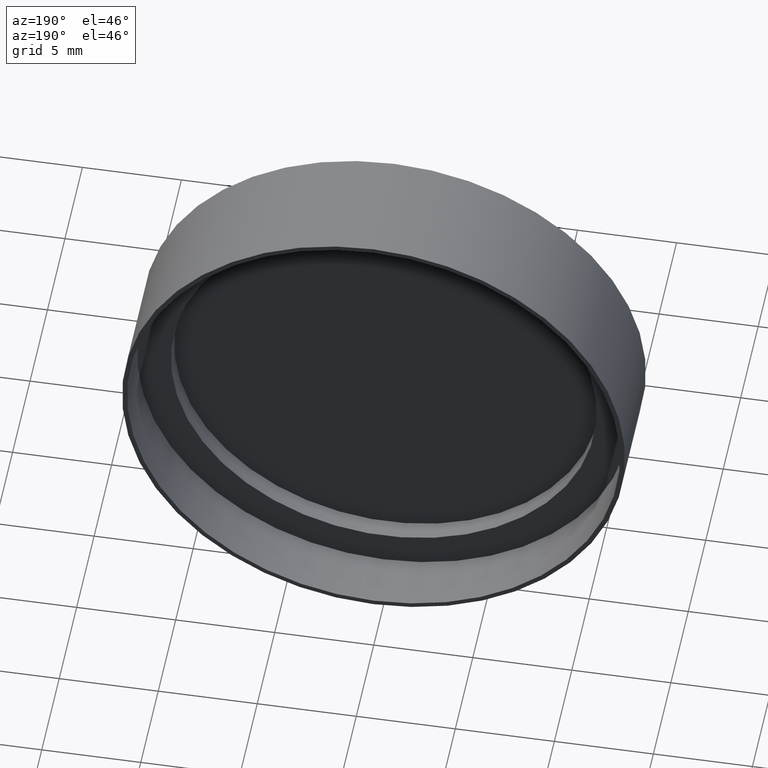
[diagram: clean part render]
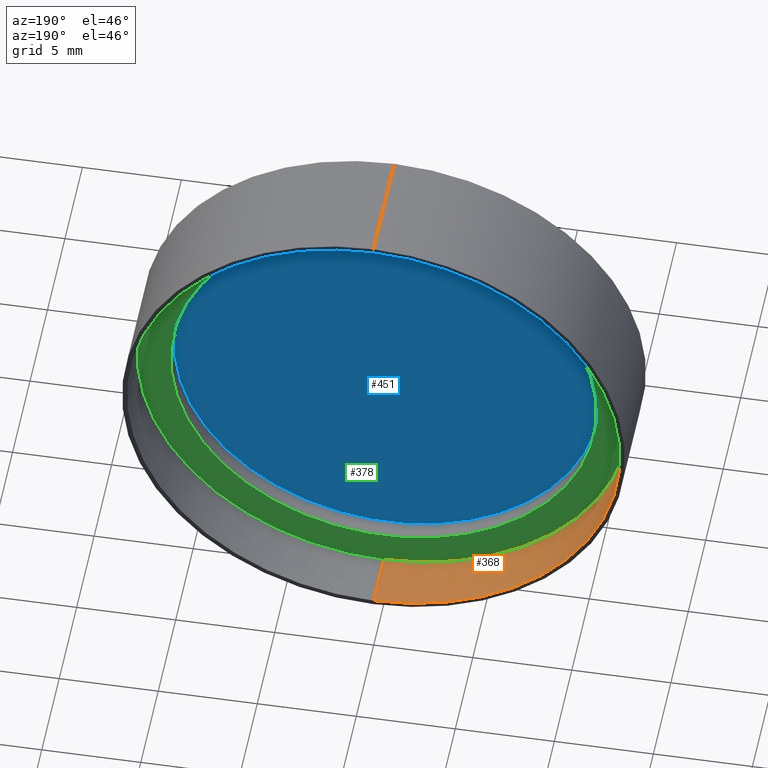
[diagram: same view with three faces highlighted in distinct colors, each labeled with its STEP entity id]
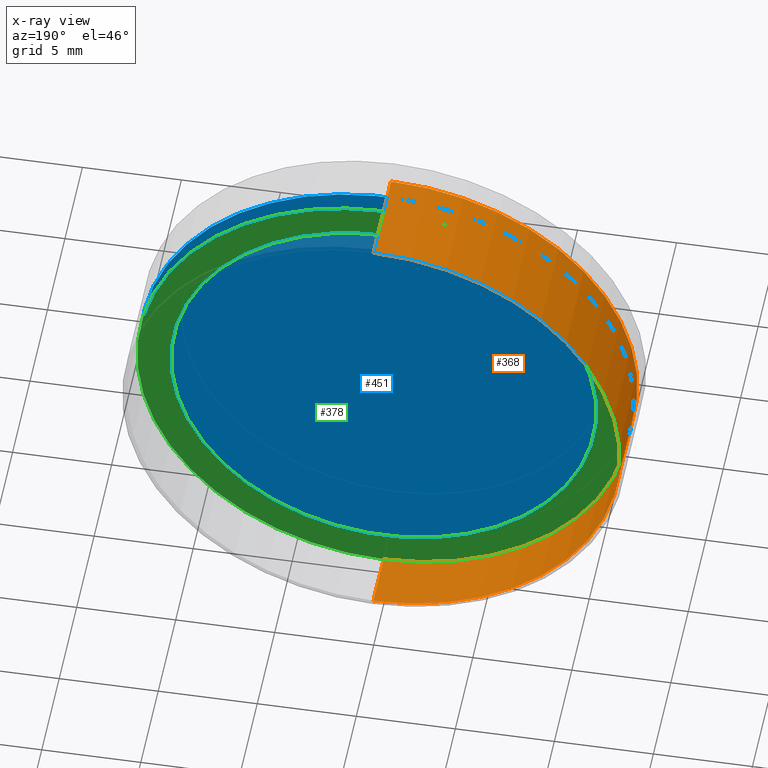
[diagram: x-ray of the same camera — body ghosted, the three highlighted faces saturated]
A machine part, auxiliary view with three faces highlighted in distinct colors.
The next image is the same camera in x-ray (body ghosted, the three faces saturated) — at least one of them is partly hidden behind the body in this view.
Their STEP definitions:

[orange] entity #368 — the highlighted cylindrical surface (partial cylindrical patch) has radius 12.45 mm, axis along (-0, -1, -0).
#27 = CARTESIAN_POINT ( 'NONE',  ( -34.59164044491552659, -8.259296399802728672, 12.44999999999999929 ) ) ;
#33 = ORIENTED_EDGE ( 'NONE', *, *, #547, .F. ) ;
#40 = CARTESIAN_POINT ( 'NONE',  ( -34.59164044491552659, -8.259296399802728672, -12.44999999999999929 ) ) ;
#119 = VECTOR ( 'NONE', #180, 1000.000000000000000 ) ;
#139 = CARTESIAN_POINT ( 'NONE',  ( -34.59164044491552659, -2.259296399802728228, 12.44999999999999929 ) ) ;
#145 = CYLINDRICAL_SURFACE ( 'NONE', #810, 12.44999999999999929 ) ;
#180 = DIRECTION ( 'NONE',  ( -0.0000000000000000000, -1.000000000000000000, -0.0000000000000000000 ) ) ;
#184 = EDGE_CURVE ( 'NONE', #758, #482, #393, .T. ) ;
#205 = DIRECTION ( 'NONE',  ( 0.0000000000000000000, 0.0000000000000000000, -1.000000000000000000 ) ) ;
#222 = LINE ( 'NONE', #27, #296 ) ;
#225 = DIRECTION ( 'NONE',  ( 0.0000000000000000000, 0.0000000000000000000, -1.000000000000000000 ) ) ;
#260 = CARTESIAN_POINT ( 'NONE',  ( -34.59164044491552659, -7.259296399802728672, -12.44999999999999929 ) ) ;
#274 = CARTESIAN_POINT ( 'NONE',  ( -34.59164044491552659, -2.259296399802728228, -12.44999999999999929 ) ) ;
#288 = CARTESIAN_POINT ( 'NONE',  ( -34.59164044491552659, -2.259296399802728228, 0.0000000000000000000 ) ) ;
#296 = VECTOR ( 'NONE', #573, 1000.000000000000000 ) ;
#300 = DIRECTION ( 'NONE',  ( -0.0000000000000000000, -1.000000000000000000, -0.0000000000000000000 ) ) ;
#303 = EDGE_LOOP ( 'NONE', ( #358, #739, #784, #33 ) ) ;
#305 = EDGE_CURVE ( 'NONE', #445, #685, #360, .T. ) ;
#357 = DIRECTION ( 'NONE',  ( -0.0000000000000000000, -1.000000000000000000, -0.0000000000000000000 ) ) ;
#358 = ORIENTED_EDGE ( 'NONE', *, *, #184, .F. ) ;
#360 = CIRCLE ( 'NONE', #848, 12.44999999999999929 ) ;
#368 = ADVANCED_FACE ( 'NONE', ( #489 ), #145, .F. ) ;
#393 = CIRCLE ( 'NONE', #602, 12.44999999999999929 ) ;
#433 = DIRECTION ( 'NONE',  ( 0.0000000000000000000, 0.0000000000000000000, -1.000000000000000000 ) ) ;
#445 = VERTEX_POINT ( 'NONE', #738 ) ;
#453 = LINE ( 'NONE', #40, #119 ) ;
#482 = VERTEX_POINT ( 'NONE', #274 ) ;
#485 = CARTESIAN_POINT ( 'NONE',  ( -34.59164044491552659, -8.259296399802728672, 0.0000000000000000000 ) ) ;
#489 = FACE_OUTER_BOUND ( 'NONE', #303, .T. ) ;
#547 = EDGE_CURVE ( 'NONE', #482, #685, #453, .T. ) ;
#573 = DIRECTION ( 'NONE',  ( -0.0000000000000000000, -1.000000000000000000, -0.0000000000000000000 ) ) ;
#599 = EDGE_CURVE ( 'NONE', #758, #445, #222, .T. ) ;
#602 = AXIS2_PLACEMENT_3D ( 'NONE', #288, #357, #205 ) ;
#628 = CARTESIAN_POINT ( 'NONE',  ( -34.59164044491552659, -7.259296399802728672, 0.0000000000000000000 ) ) ;
#685 = VERTEX_POINT ( 'NONE', #260 ) ;
#738 = CARTESIAN_POINT ( 'NONE',  ( -34.59164044491552659, -7.259296399802728672, 12.44999999999999929 ) ) ;
#739 = ORIENTED_EDGE ( 'NONE', *, *, #599, .T. ) ;
#758 = VERTEX_POINT ( 'NONE', #139 ) ;
#784 = ORIENTED_EDGE ( 'NONE', *, *, #305, .T. ) ;
#805 = DIRECTION ( 'NONE',  ( -0.0000000000000000000, -1.000000000000000000, -0.0000000000000000000 ) ) ;
#810 = AXIS2_PLACEMENT_3D ( 'NONE', #485, #805, #433 ) ;
#848 = AXIS2_PLACEMENT_3D ( 'NONE', #628, #300, #225 ) ;

[blue] entity #451 — the highlighted planar face has unit normal (-0, 1, 0).
#39 = ORIENTED_EDGE ( 'NONE', *, *, #226, .T. ) ;
#73 = DIRECTION ( 'NONE',  ( 0.0000000000000000000, 1.000000000000000000, 0.0000000000000000000 ) ) ;
#140 = FACE_OUTER_BOUND ( 'NONE', #334, .T. ) ;
#161 = ORIENTED_EDGE ( 'NONE', *, *, #818, .T. ) ;
#194 = AXIS2_PLACEMENT_3D ( 'NONE', #417, #200, #607 ) ;
#200 = DIRECTION ( 'NONE',  ( -0.0000000000000000000, 1.000000000000000000, 0.0000000000000000000 ) ) ;
#226 = EDGE_CURVE ( 'NONE', #822, #497, #623, .T. ) ;
#310 = AXIS2_PLACEMENT_3D ( 'NONE', #553, #492, #564 ) ;
#326 = CIRCLE ( 'NONE', #310, 12.44999999999999929 ) ;
#334 = EDGE_LOOP ( 'NONE', ( #39, #161 ) ) ;
#348 = DIRECTION ( 'NONE',  ( 0.6030480443628842835, 0.0000000000000000000, 0.7977048678490690214 ) ) ;
#417 = CARTESIAN_POINT ( 'NONE',  ( -34.59164044491551238, -6.159296399802728139, 0.0000000000000000000 ) ) ;
#420 = CARTESIAN_POINT ( 'NONE',  ( -27.08369229259760402, -6.159296399802728139, 9.931425604720907074 ) ) ;
#451 = ADVANCED_FACE ( 'NONE', ( #140 ), #550, .T. ) ;
#492 = DIRECTION ( 'NONE',  ( 0.0000000000000000000, 1.000000000000000000, 0.0000000000000000000 ) ) ;
#497 = VERTEX_POINT ( 'NONE', #420 ) ;
#550 = PLANE ( 'NONE',  #194 ) ;
#553 = CARTESIAN_POINT ( 'NONE',  ( -34.59164044491551238, -6.159296399802728139, 0.0000000000000000000 ) ) ;
#564 = DIRECTION ( 'NONE',  ( 0.6030480443628842835, 0.0000000000000000000, 0.7977048678490690214 ) ) ;
#607 = DIRECTION ( 'NONE',  ( 0.6030480443628841725, 0.0000000000000000000, 0.7977048678490691325 ) ) ;
#623 = CIRCLE ( 'NONE', #644, 12.44999999999999929 ) ;
#644 = AXIS2_PLACEMENT_3D ( 'NONE', #671, #73, #348 ) ;
#671 = CARTESIAN_POINT ( 'NONE',  ( -34.59164044491551238, -6.159296399802728139, 0.0000000000000000000 ) ) ;
#812 = CARTESIAN_POINT ( 'NONE',  ( -42.09958859723342073, -6.159296399802728139, -9.931425604720907074 ) ) ;
#818 = EDGE_CURVE ( 'NONE', #497, #822, #326, .T. ) ;
#822 = VERTEX_POINT ( 'NONE', #812 ) ;

[green] entity #378 — the highlighted planar face has unit normal (-0, 1, 0).
#3 = AXIS2_PLACEMENT_3D ( 'NONE', #712, #114, #586 ) ;
#13 = VERTEX_POINT ( 'NONE', #17 ) ;
#17 = CARTESIAN_POINT ( 'NONE',  ( -23.87014283265796166, -5.159296399802727251, 0.7822972263501586365 ) ) ;
#79 = FACE_OUTER_BOUND ( 'NONE', #570, .T. ) ;
#106 = AXIS2_PLACEMENT_3D ( 'NONE', #680, #366, #737 ) ;
#114 = DIRECTION ( 'NONE',  ( -0.0000000000000000000, 1.000000000000000000, 0.0000000000000000000 ) ) ;
#116 = CARTESIAN_POINT ( 'NONE',  ( -34.59164044491553369, -5.159296399802727251, 1.860084352170443545E-15 ) ) ;
#129 = ORIENTED_EDGE ( 'NONE', *, *, #147, .F. ) ;
#134 = ORIENTED_EDGE ( 'NONE', *, *, #669, .F. ) ;
#143 = ORIENTED_EDGE ( 'NONE', *, *, #785, .T. ) ;
#147 = EDGE_CURVE ( 'NONE', #13, #259, #798, .T. ) ;
#153 = CARTESIAN_POINT ( 'NONE',  ( -22.17465018699862611, -5.159296399802727251, 0.9060093458659976839 ) ) ;
#187 = PLANE ( 'NONE',  #3 ) ;
#190 = ORIENTED_EDGE ( 'NONE', *, *, #530, .T. ) ;
#229 = VERTEX_POINT ( 'NONE', #678 ) ;
#251 = CIRCLE ( 'NONE', #106, 12.44999999999999574 ) ;
#259 = VERTEX_POINT ( 'NONE', #756 ) ;
#286 = FACE_BOUND ( 'NONE', #554, .T. ) ;
#316 = DIRECTION ( 'NONE',  ( 0.9973486150937277417, 0.0000000000000000000, 0.07277183500931706794 ) ) ;
#327 = AXIS2_PLACEMENT_3D ( 'NONE', #349, #674, #409 ) ;
#338 = VERTEX_POINT ( 'NONE', #153 ) ;
#349 = CARTESIAN_POINT ( 'NONE',  ( -34.59164044491553369, -5.159296399802727251, 1.860084352170443545E-15 ) ) ;
#366 = DIRECTION ( 'NONE',  ( 0.0000000000000000000, 1.000000000000000000, 0.0000000000000000000 ) ) ;
#378 = ADVANCED_FACE ( 'NONE', ( #79, #286 ), #187, .T. ) ;
#399 = CIRCLE ( 'NONE', #327, 10.75000000000000000 ) ;
#404 = AXIS2_PLACEMENT_3D ( 'NONE', #772, #528, #711 ) ;
#409 = DIRECTION ( 'NONE',  ( 0.9973486150937277417, 0.0000000000000000000, 0.07277183500931705407 ) ) ;
#494 = AXIS2_PLACEMENT_3D ( 'NONE', #116, #522, #316 ) ;
#522 = DIRECTION ( 'NONE',  ( 0.0000000000000000000, 1.000000000000000000, 0.0000000000000000000 ) ) ;
#528 = DIRECTION ( 'NONE',  ( 0.0000000000000000000, 1.000000000000000000, 0.0000000000000000000 ) ) ;
#530 = EDGE_CURVE ( 'NONE', #229, #338, #727, .T. ) ;
#554 = EDGE_LOOP ( 'NONE', ( #134, #129 ) ) ;
#570 = EDGE_LOOP ( 'NONE', ( #190, #143 ) ) ;
#586 = DIRECTION ( 'NONE',  ( 0.9973486150937277417, 0.0000000000000000000, 0.07277183500931705407 ) ) ;
#669 = EDGE_CURVE ( 'NONE', #259, #13, #399, .T. ) ;
#674 = DIRECTION ( 'NONE',  ( 0.0000000000000000000, 1.000000000000000000, 0.0000000000000000000 ) ) ;
#678 = CARTESIAN_POINT ( 'NONE',  ( -47.00863070283244127, -5.159296399802727251, -0.9060093458659954635 ) ) ;
#680 = CARTESIAN_POINT ( 'NONE',  ( -34.59164044491553369, -5.159296399802727251, 1.860084352170443545E-15 ) ) ;
#711 = DIRECTION ( 'NONE',  ( 0.9973486150937277417, 0.0000000000000000000, 0.07277183500931705407 ) ) ;
#712 = CARTESIAN_POINT ( 'NONE',  ( -34.59164044491553369, -5.159296399802727251, 1.860084352170443545E-15 ) ) ;
#727 = CIRCLE ( 'NONE', #494, 12.44999999999999574 ) ;
#737 = DIRECTION ( 'NONE',  ( 0.9973486150937277417, 0.0000000000000000000, 0.07277183500931706794 ) ) ;
#756 = CARTESIAN_POINT ( 'NONE',  ( -45.31313805717311283, -5.159296399802727251, -0.7822972263501563051 ) ) ;
#772 = CARTESIAN_POINT ( 'NONE',  ( -34.59164044491553369, -5.159296399802727251, 1.860084352170443545E-15 ) ) ;
#785 = EDGE_CURVE ( 'NONE', #338, #229, #251, .T. ) ;
#798 = CIRCLE ( 'NONE', #404, 10.75000000000000000 ) ;